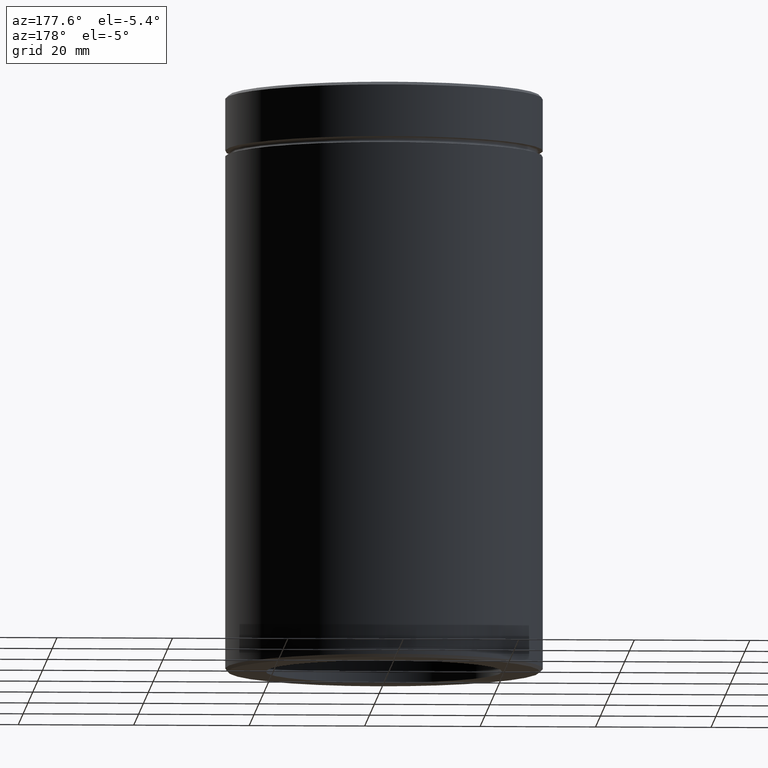
[diagram: clean part render]
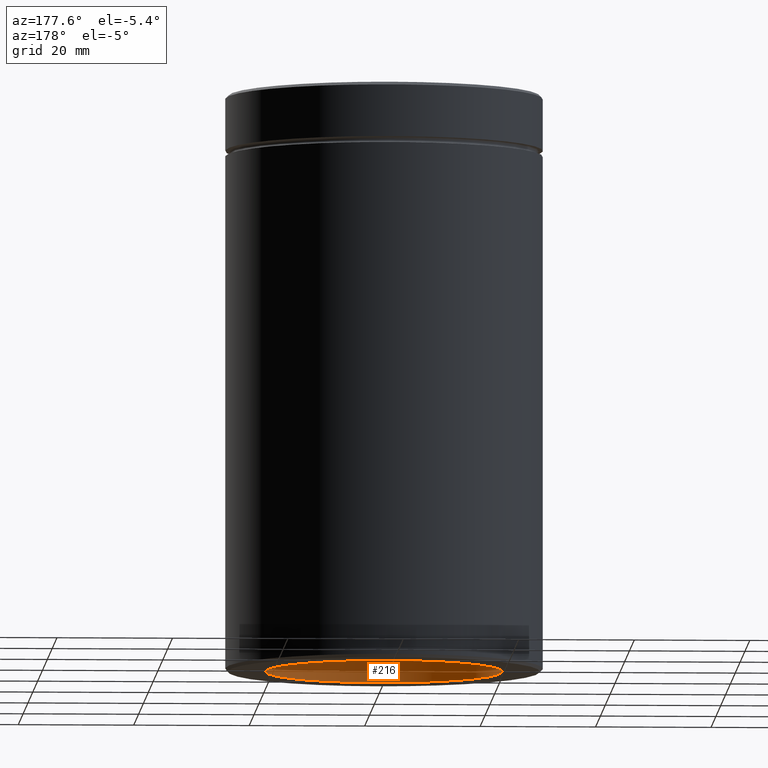
[diagram: same view with one face highlighted and labeled with its STEP entity id]
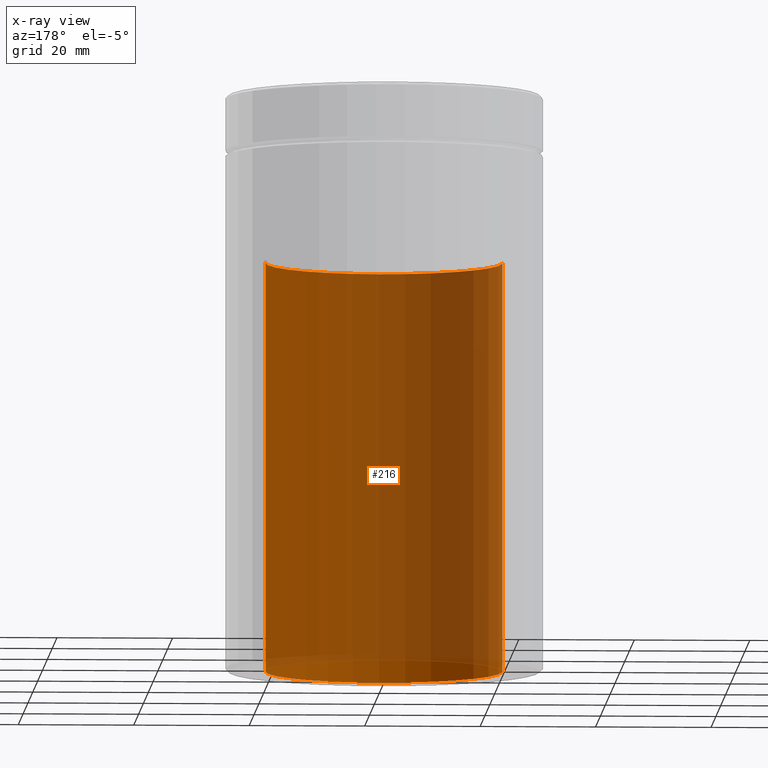
[diagram: x-ray of the same camera — body ghosted, the highlighted face saturated]
A machine part, auxiliary view. The second image highlights one B-rep face of the part: STEP entity #216.
The next image is the same camera in x-ray: the body ghosted, the highlighted face saturated — about 96% of this face is hidden behind the body in this view.
In plain terms, the highlighted cylindrical surface (partial cylindrical patch) has radius 20.5 mm, axis along (-0, -0, -1).
Its self-contained STEP definition (entity closure, byte-faithful):
#45 = ORIENTED_EDGE ( 'NONE', *, *, #274, .T. ) ;
#50 = ORIENTED_EDGE ( 'NONE', *, *, #251, .F. ) ;
#65 = LINE ( 'NONE', #247, #149 ) ;
#72 = EDGE_CURVE ( 'NONE', #238, #305, #65, .T. ) ;
#96 = VERTEX_POINT ( 'NONE', #304 ) ;
#126 = VECTOR ( 'NONE', #300, 1000.000000000000000 ) ;
#149 = VECTOR ( 'NONE', #423, 1000.000000000000000 ) ;
#150 = CARTESIAN_POINT ( 'NONE',  ( 0.000000000000000000, 0.000000000000000000, -29.00000000000001066 ) ) ;
#157 = CARTESIAN_POINT ( 'NONE',  ( 20.50000000000000000, 2.510525938252074481E-15, -29.00000000000001066 ) ) ;
#158 = CIRCLE ( 'NONE', #167, 20.50000000000000000 ) ;
#160 = CARTESIAN_POINT ( 'NONE',  ( -20.50000000000000000, 0.000000000000000000, -100.0000000000000000 ) ) ;
#167 = AXIS2_PLACEMENT_3D ( 'NONE', #226, #487, #448 ) ;
#187 = EDGE_LOOP ( 'NONE', ( #50, #45, #250, #517 ) ) ;
#208 = EDGE_CURVE ( 'NONE', #96, #305, #158, .T. ) ;
#210 = CARTESIAN_POINT ( 'NONE',  ( -20.50000000000000000, 0.000000000000000000, -29.00000000000001066 ) ) ;
#212 = CIRCLE ( 'NONE', #253, 20.50000000000000000 ) ;
#216 = ADVANCED_FACE ( 'NONE', ( #336 ), #541, .F. ) ;
#226 = CARTESIAN_POINT ( 'NONE',  ( 0.000000000000000000, 0.000000000000000000, -100.0000000000000000 ) ) ;
#238 = VERTEX_POINT ( 'NONE', #210 ) ;
#247 = CARTESIAN_POINT ( 'NONE',  ( -20.50000000000000000, 0.000000000000000000, -29.00000000000001066 ) ) ;
#250 = ORIENTED_EDGE ( 'NONE', *, *, #208, .T. ) ;
#251 = EDGE_CURVE ( 'NONE', #528, #238, #212, .T. ) ;
#253 = AXIS2_PLACEMENT_3D ( 'NONE', #385, #424, #389 ) ;
#274 = EDGE_CURVE ( 'NONE', #528, #96, #512, .T. ) ;
#300 = DIRECTION ( 'NONE',  ( -0.000000000000000000, -0.000000000000000000, -1.000000000000000000 ) ) ;
#304 = CARTESIAN_POINT ( 'NONE',  ( 20.50000000000000000, 2.510525938252074481E-15, -100.0000000000000000 ) ) ;
#305 = VERTEX_POINT ( 'NONE', #160 ) ;
#325 = DIRECTION ( 'NONE',  ( -0.000000000000000000, -0.000000000000000000, -1.000000000000000000 ) ) ;
#331 = AXIS2_PLACEMENT_3D ( 'NONE', #150, #325, #491 ) ;
#336 = FACE_OUTER_BOUND ( 'NONE', #187, .T. ) ;
#385 = CARTESIAN_POINT ( 'NONE',  ( 0.000000000000000000, 0.000000000000000000, -29.00000000000001066 ) ) ;
#389 = DIRECTION ( 'NONE',  ( -1.000000000000000000, 0.000000000000000000, 0.000000000000000000 ) ) ;
#423 = DIRECTION ( 'NONE',  ( -0.000000000000000000, -0.000000000000000000, -1.000000000000000000 ) ) ;
#424 = DIRECTION ( 'NONE',  ( 0.000000000000000000, 0.000000000000000000, -1.000000000000000000 ) ) ;
#439 = CARTESIAN_POINT ( 'NONE',  ( 20.50000000000000000, 2.510525938252074481E-15, -29.00000000000001066 ) ) ;
#448 = DIRECTION ( 'NONE',  ( -1.000000000000000000, 0.000000000000000000, 0.000000000000000000 ) ) ;
#487 = DIRECTION ( 'NONE',  ( 0.000000000000000000, 0.000000000000000000, -1.000000000000000000 ) ) ;
#491 = DIRECTION ( 'NONE',  ( -1.000000000000000000, 0.000000000000000000, 0.000000000000000000 ) ) ;
#512 = LINE ( 'NONE', #157, #126 ) ;
#517 = ORIENTED_EDGE ( 'NONE', *, *, #72, .F. ) ;
#528 = VERTEX_POINT ( 'NONE', #439 ) ;
#541 = CYLINDRICAL_SURFACE ( 'NONE', #331, 20.50000000000000000 ) ;